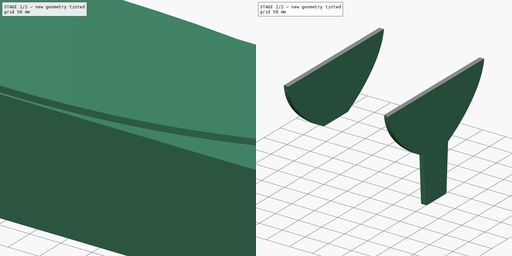
[diagram: build sequence overview — one tinted view per stage of 2, left to right]
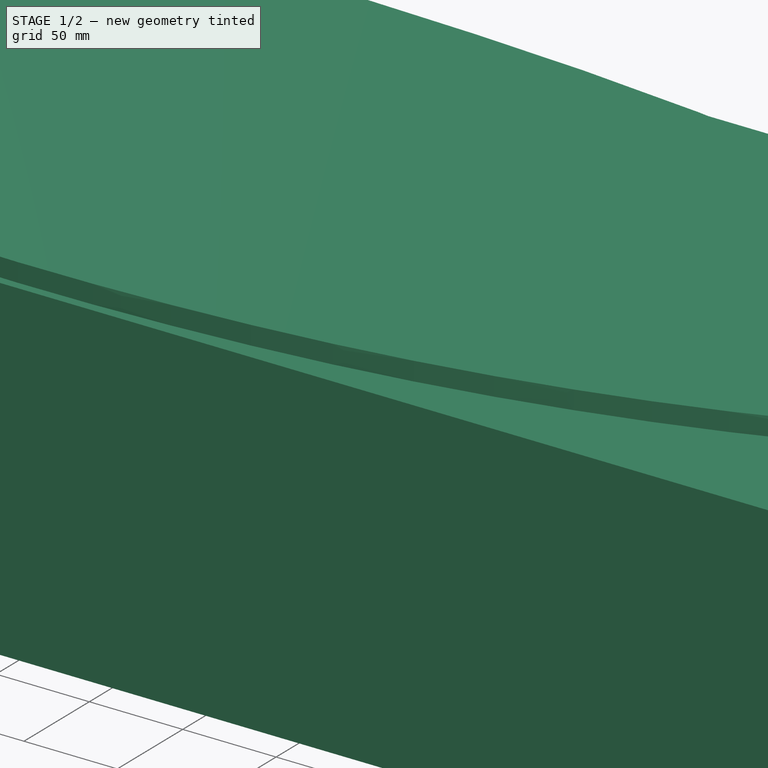
[diagram: stage 1 of 2 — iso view after this stage's code; geometry added in this stage tinted green]
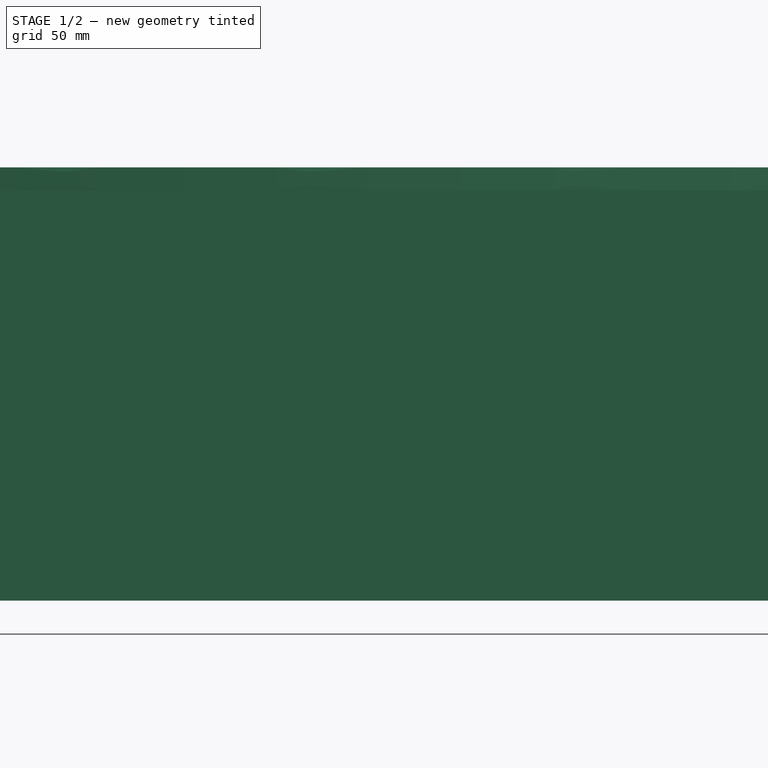
[diagram: stage 1 of 2 — front view after this stage's code; geometry added in this stage tinted green]
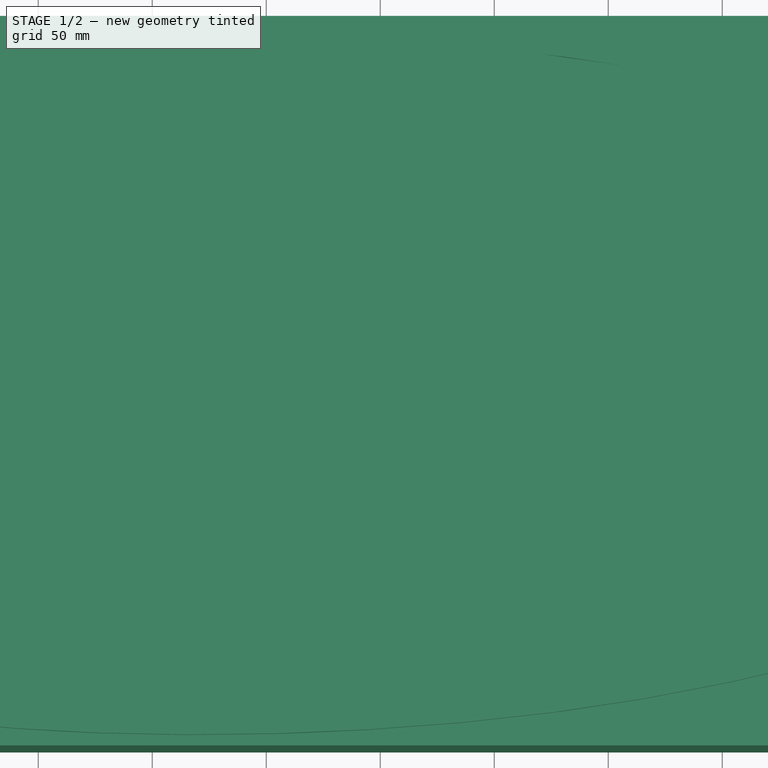
[diagram: stage 1 of 2 — top view after this stage's code; geometry added in this stage tinted green]
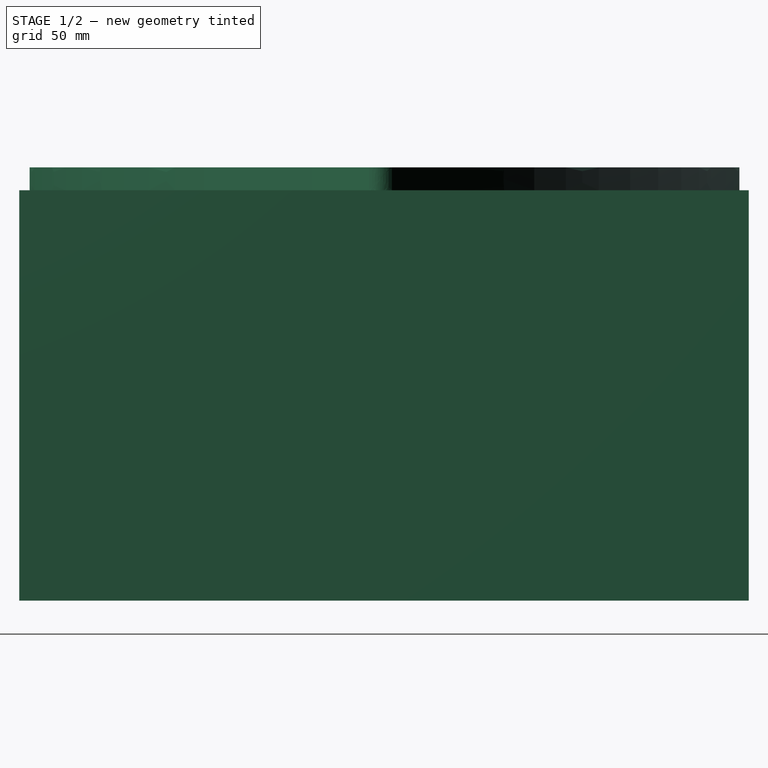
[diagram: stage 1 of 2 — right view after this stage's code; geometry added in this stage tinted green]
FCSTD DOCUMENT  (FreeCAD 0.20R29177 (Git))
Label: hull_v3
License: All rights reserved
LicenseURL: http://en.wikipedia.org/wiki/All_rights_reserved
objects: Sketcher::SketchObject×12, Drawing::FeaturePage×4, PartDesign::Pad×3, Drawing::FeatureViewPart×3, Part::Extrusion×2, Part::FeaturePython×1, PartDesign::ShapeBinder×1, Part::RuledSurface×1, PartDesign::Body×1, App::Part×1
note: 24 computed .brp shape members not serialized (recipe doc carries the construction recipe); baked Part::Feature solids carry a one-line shape summary decoded from their .brp

FEATURE [Sketcher::SketchObject] Sketch  label="DeckShape"
  FullyConstrained = false
  MapMode = 2
  sketch-geometry (58):
    g0-g7: Circle x8 (B-spline internal-alignment scaffolding for g8; pole/knot coordinates omitted)
    g8: BSplineCurve PolesCount=9 KnotsCount=7 Degree=3 IsPeriodic=0
    g9-g14: GeomPoint x6 (B-spline internal-alignment scaffolding for g8; pole/knot coordinates omitted)
    g15: LineSegment StartX=28.628 StartY=91.8263 StartZ=0 EndX=28.628 EndY=0 EndZ=0
    g16: LineSegment StartX=138.526 StartY=130.345 StartZ=0 EndX=138.526 EndY=0 EndZ=0
    g17: LineSegment StartX=298.158 StartY=158.341 StartZ=0 EndX=298.158 EndY=0 EndZ=0
    g18: LineSegment StartX=538.022 StartY=150.79 StartZ=0 EndX=538.022 EndY=0 EndZ=0
    g19: LineSegment StartX=739.297 StartY=98.3557 StartZ=0 EndX=739.297 EndY=0 EndZ=0
    g20: LineSegment StartX=839.281 StartY=0 StartZ=0 EndX=839.281 EndY=45.6065 EndZ=0
    g21: LineSegment StartX=28.628 StartY=0 StartZ=0 EndX=28.628 EndY=-91.8263 EndZ=0
    g22: LineSegment StartX=138.526 StartY=0 StartZ=0 EndX=138.526 EndY=-130.345 EndZ=0
    g23: LineSegment StartX=298.158 StartY=0 StartZ=0 EndX=298.158 EndY=-158.341 EndZ=0
    g24: LineSegment StartX=538.022 StartY=0 StartZ=0 EndX=538.022 EndY=-150.79 EndZ=0
    g25: LineSegment StartX=739.297 StartY=0 StartZ=0 EndX=739.297 EndY=-98.3557 EndZ=0
    g26: LineSegment StartX=839.281 StartY=0 StartZ=0 EndX=839.281 EndY=-45.6065 EndZ=0
    g27: LineSegment StartX=902.149 StartY=5 StartZ=0 EndX=902.149 EndY=0 EndZ=0
    g28: LineSegment StartX=0 StartY=0 StartZ=0 EndX=0 EndY=5 EndZ=0
    g29: LineSegment StartX=0 StartY=0 StartZ=0 EndX=0 EndY=-5 EndZ=0
    g30: LineSegment StartX=902.149 StartY=0 StartZ=0 EndX=902.149 EndY=-5 EndZ=0
    g31-g38: Circle x8 (B-spline internal-alignment scaffolding for g39; pole/knot coordinates omitted)
    g39: BSplineCurve PolesCount=8 KnotsCount=6 Degree=3 IsPeriodic=0
    g40-g45: GeomPoint x6 (B-spline internal-alignment scaffolding for g39; pole/knot coordinates omitted)
    g46: Circle CenterX=0 CenterY=5 CenterZ=0 NormalX=0 NormalY=0 NormalZ=1 AngleXU=0 Radius=1
    g47: Circle CenterX=-1.25095 CenterY=0 CenterZ=0 NormalX=0 NormalY=0 NormalZ=1 AngleXU=0 Radius=1
    g48: Circle CenterX=0 CenterY=-5 CenterZ=0 NormalX=0 NormalY=0 NormalZ=1 AngleXU=0 Radius=1
    g49: BSplineCurve PolesCount=3 KnotsCount=2 Degree=2 IsPeriodic=0
    g50: GeomPoint X=0 Y=5 Z=0
    g51: GeomPoint X=0 Y=-5 Z=0
    g52: Circle CenterX=902.149 CenterY=5 CenterZ=0 NormalX=0 NormalY=0 NormalZ=1 AngleXU=0 Radius=1
    g53: Circle CenterX=905.726 CenterY=0 CenterZ=0 NormalX=0 NormalY=0 NormalZ=1 AngleXU=0 Radius=1
    g54: Circle CenterX=902.149 CenterY=-5 CenterZ=0 NormalX=0 NormalY=0 NormalZ=1 AngleXU=0 Radius=1
    g55: BSplineCurve PolesCount=3 KnotsCount=2 Degree=2 IsPeriodic=0
    g56: GeomPoint X=902.149 Y=5 Z=0
    g57: GeomPoint X=902.149 Y=-5 Z=0
  constraints (100):
    c: InternalAlignment(g0-g7 -> g8) x8
    c: InternalAlignment(g9-g14 -> g8) x6
    c: Coincident(g1,g15)
    c: Vertical(g15)
    c: Coincident(g2,g16)
    c: Vertical(g16)
    c: Coincident(g17,g4)
    c: PointOnObject(g17,g-1)
    c: Vertical(g17)
    c: Coincident(g18,g5)
    c: Coincident(g19,g6)
    c: PointOnObject(g19,g-1)
    c: Vertical(g19)
    c: PointOnObject(g20,g-1)
    c: Coincident(g20,g7)
    c: Vertical(g20)
    c: Coincident(g21,g15)
    c: Vertical(g21)
    c: Coincident(g22,g16)
    c: Vertical(g22)
    c: Coincident(g23,g17)
    c: Vertical(g23)
    c: Coincident(g24,g18)
    c: Vertical(g24)
    c: Coincident(g25,g19)
    c: Vertical(g25)
    c: Coincident(g26,g20)
    c: Vertical(g26)
    c: Equal(g21,g15)
    c: Equal(g16,g22)
    c: PointOnObject(g15,g-1)
    c: PointOnObject(g16,g-1)
    c: Equal(g23,g17)
    c: Equal(g24,g18)
    c: PointOnObject(g18,g-1)
    c: Equal(g25,g19)
    c: Equal(g26,g20)
    c: DistanceX(g8,g8) = 902.149
    c: Vertical(g18)
    c: DistanceY(g23,g4) = 316.682
    c: DistanceX(g8,g1) = 28.628
    c: DistanceX(g1,g2) = 109.898
    c: DistanceX(g2,g4) = 159.632
    c: DistanceX(g4,g5) = 239.865
    c: DistanceX(g5,g6) = 201.275
    c: DistanceX(g6,g7) = 99.9831
    c: Coincident(g27,g8)
    c: PointOnObject(g27,g-1)
    c: Vertical(g27)
    c: Coincident(g28,g8)
    c: Vertical(g28)
    c: Coincident(g28,g-1)
    c: Coincident(g29,g-1)
    c: PointOnObject(g29,g-2)
    c: Equal(g29,g28)
    c: DistanceY(g29,g8) = 10
    c: Coincident(g30,g27)
    c: Vertical(g30)
    c: Equal(g27,g30)
    c: DistanceY(g30,g8) = 10
    c: Coincident(g39,g29)
    c: Weight(g31) = 1
    c: Equal(g31,g32)
    c: Coincident(g32,g21)
    c: Equal(g31,g33)
    c: Coincident(g33,g22)
    c: Equal(g31,g34)
    c: Coincident(g34,g23)
    c: Equal(g31,g35)
    c: Coincident(g35,g24)
    c: Equal(g31,g36)
    c: Coincident(g36,g25)
    c: Equal(g31,g37)
    c: Coincident(g37,g26)
    c: Equal(g31,g38)
    c: Coincident(g39,g30)
    c: InternalAlignment(g31-g38 -> g39) x8
    c: InternalAlignment(g40-g45 -> g39) x6
    c: Coincident(g49,g8)
    c: Weight(g46) = 1
    c: Equal(g46,g47)
    c: PointOnObject(g47,g-1)
    c: Equal(g46,g48)
    c: Coincident(g49,g39)
    c: InternalAlignment(g46,g49)
    c: InternalAlignment(g47,g49)
    c: InternalAlignment(g48,g49)
    c: InternalAlignment(g50,g49)
    c: InternalAlignment(g51,g49)
    c: Coincident(g55,g8)
    c: Weight(g52) = 1
    c: Equal(g52,g53)
    c: PointOnObject(g53,g-1)
    c: Equal(g52,g54)
    c: Coincident(g55,g39)
    c: InternalAlignment(g52,g55)
    c: InternalAlignment(g53,g55)
    c: InternalAlignment(g54,g55)
    c: InternalAlignment(g56,g55)
    c: InternalAlignment(g57,g55)
FEATURE [Sketcher::SketchObject] Sketch019  label="HullShapeVertical"
  FullyConstrained = false
  MapMode = 5
  Placement = pos=(0,-5,0) rot=(1,0,0;1.5708rad)
  sketch-geometry (17):
    g0: LineSegment StartX=495.175 StartY=-124.031 StartZ=0 EndX=451.518 EndY=-208.573 EndZ=0
    g1: LineSegment StartX=451.518 StartY=-208.573 StartZ=0 EndX=266.518 EndY=-220 EndZ=0
    g2: LineSegment StartX=266.518 StartY=-220 StartZ=0 EndX=229.71 EndY=-120 EndZ=0
    g3-g8: Circle x6 (B-spline internal-alignment scaffolding for g9; pole/knot coordinates omitted)
    g9: BSplineCurve PolesCount=6 KnotsCount=4 Degree=3 IsPeriodic=0
    g10-g13: GeomPoint x4 (B-spline internal-alignment scaffolding for g9; pole/knot coordinates omitted)
    g14: LineSegment StartX=229.71 StartY=-120 StartZ=0 EndX=28.8053 EndY=-120 EndZ=0
    g15: LineSegment StartX=-4e-16 StartY=0 StartZ=0 EndX=28.8053 EndY=-120 EndZ=0
    g16: LineSegment StartX=902.149 StartY=5 StartZ=0 EndX=0 EndY=0 EndZ=0
  constraints (15):
    c: Coincident(g9,g0)
    c: Weight(g3) = 1
    c: Equal(g3, g4-g8) x5
    c: InternalAlignment(g3-g8 -> g9) x6
    c: InternalAlignment(g10-g13 -> g9) x4
    c: DistanceX(g1,g0) = 185
    c: DistanceY(g2,g-1) = 220
    c: Coincident(g1,g2)
    c: Coincident(g14,g2)
    c: Horizontal(g14)
    c: DistanceY(g1,g2) = 100
    c: Coincident(g15,g16)
    c: Coincident(g16,g9)
    c: Coincident(g1,g0)
    c: Coincident(g15,g14)
FEATURE [PartDesign::Pad] Pad  label="DeckPad"
  Direction = (1,1,1)
  Length = 10
  Length2 = 100
  Profile = -> Sketch
  Reversed = true
  Type = 0
FEATURE [Sketcher::SketchObject] Sketch020
  ExternalGeometry = -> [Sketch]
  FullyConstrained = true
  MapMode = 5
  Support = -> [Pad]
  sketch-geometry (4):
    g0: LineSegment StartX=0 StartY=-5 StartZ=0 EndX=902.149 EndY=-5 EndZ=0
    g1: LineSegment StartX=902.149 StartY=-5 StartZ=0 EndX=902.149 EndY=5 EndZ=0
    g2: LineSegment StartX=902.149 StartY=5 StartZ=0 EndX=0 EndY=5 EndZ=0
    g3: LineSegment StartX=0 StartY=5 StartZ=0 EndX=0 EndY=-5 EndZ=0
  constraints (9):
    c: Coincident(g0,g1)
    c: Coincident(g1,g2)
    c: Coincident(g2,g3)
    c: Coincident(g3,g0)
    c: Horizontal(g2)
    c: Vertical(g1)
    c: Coincident(g0,g-3)
    c: Coincident(g2,g-3)
    c: Coincident(g-4,g0)
FEATURE [Sketcher::SketchObject] Sketch021
  ExternalGeometry = -> [Pad]
  FullyConstrained = false
  MapMode = 5
  Placement = pos=(0,0,-10) rot=(1,0,0;3.14159rad)
  Support = -> [Pad]
  sketch-geometry (4):
    g0: LineSegment StartX=0 StartY=158.428 StartZ=0 EndX=902.149 EndY=158.428 EndZ=0
    g1: LineSegment StartX=902.149 StartY=158.428 StartZ=0 EndX=902.149 EndY=-161.572 EndZ=0
    g2: LineSegment StartX=902.149 StartY=-161.572 StartZ=0 EndX=0 EndY=-161.572 EndZ=0
    g3: LineSegment StartX=0 StartY=-161.572 StartZ=0 EndX=0 EndY=158.428 EndZ=0
  constraints (11):
    c: Coincident(g0,g1)
    c: Coincident(g1,g2)
    c: Coincident(g2,g3)
    c: Coincident(g3,g0)
    c: Horizontal(g0)
    c: Horizontal(g2)
    c: Vertical(g1)
    c: Vertical(g3)
    c: PointOnObject(g0,g-2)
    c: PointOnObject(g-4,g1)
    c: DistanceY(g3,g3) = 320
FEATURE [PartDesign::Pad] Pad001
  Direction = (1,1,1)
  Length = 180
  Length2 = 100
  Profile = -> Sketch021
  Type = 0
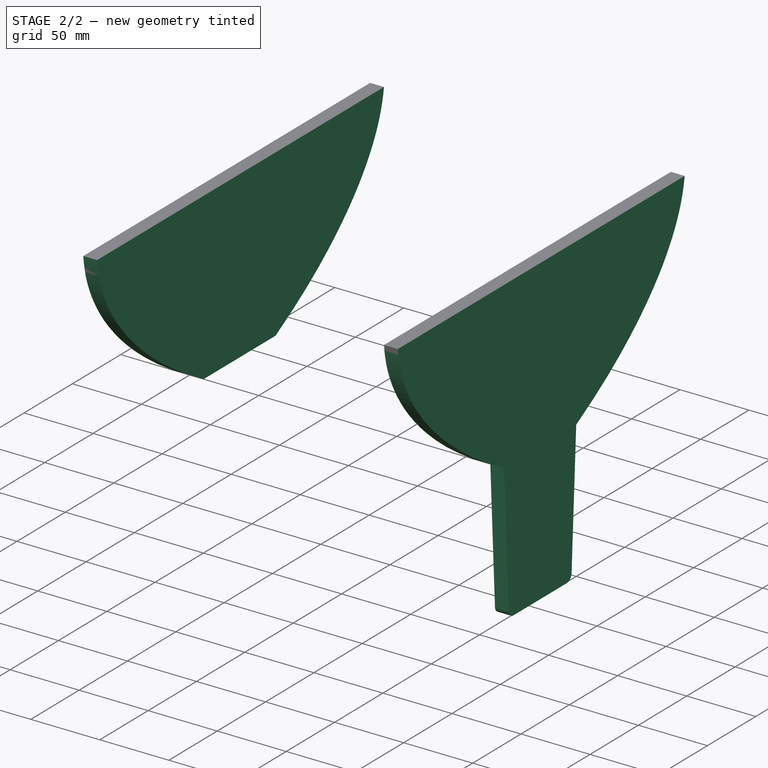
[diagram: stage 2 of 2 — iso view after this stage's code; geometry added in this stage tinted green]
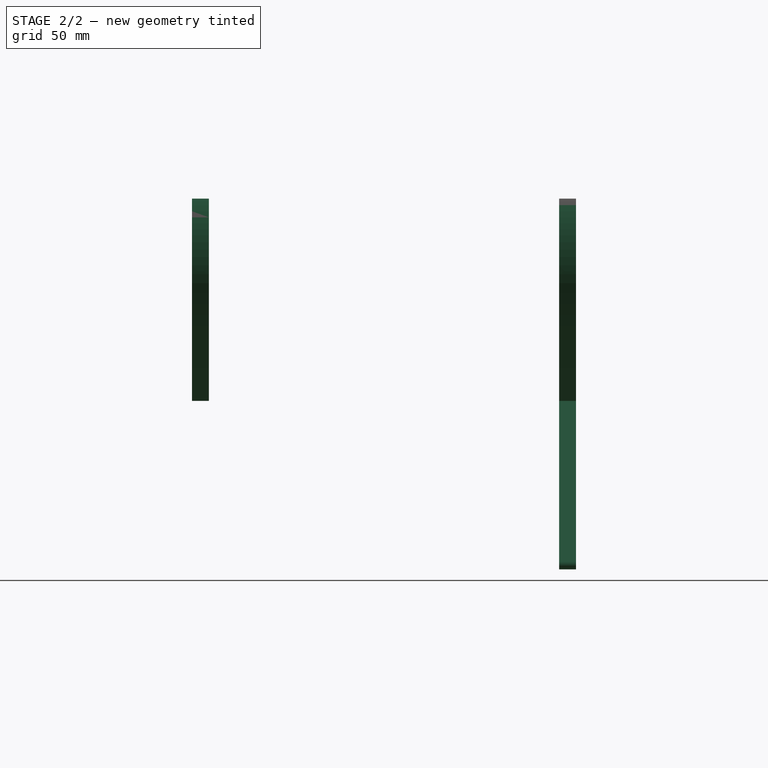
[diagram: stage 2 of 2 — front view after this stage's code; geometry added in this stage tinted green]
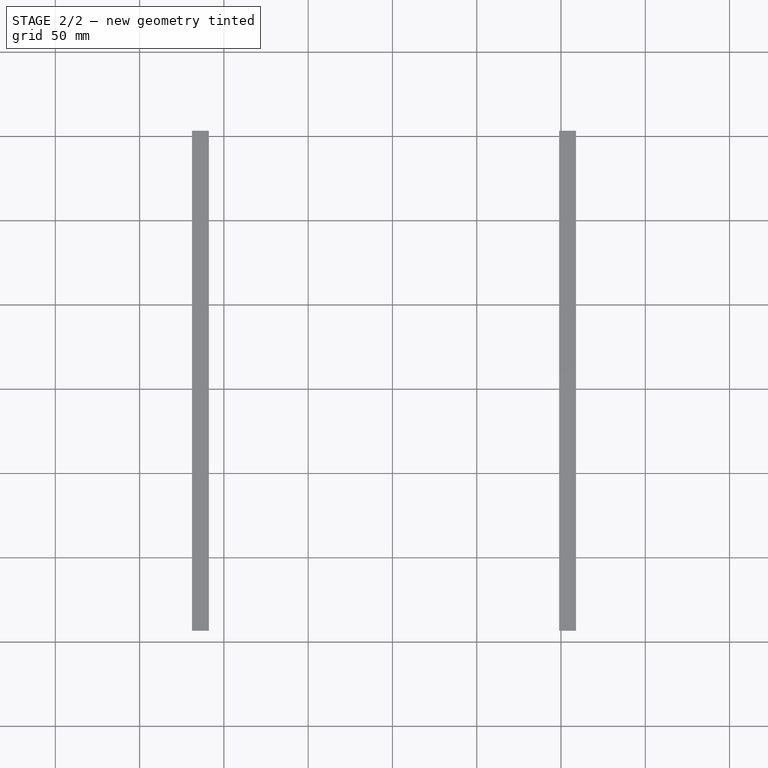
[diagram: stage 2 of 2 — top view after this stage's code; geometry added in this stage tinted green]
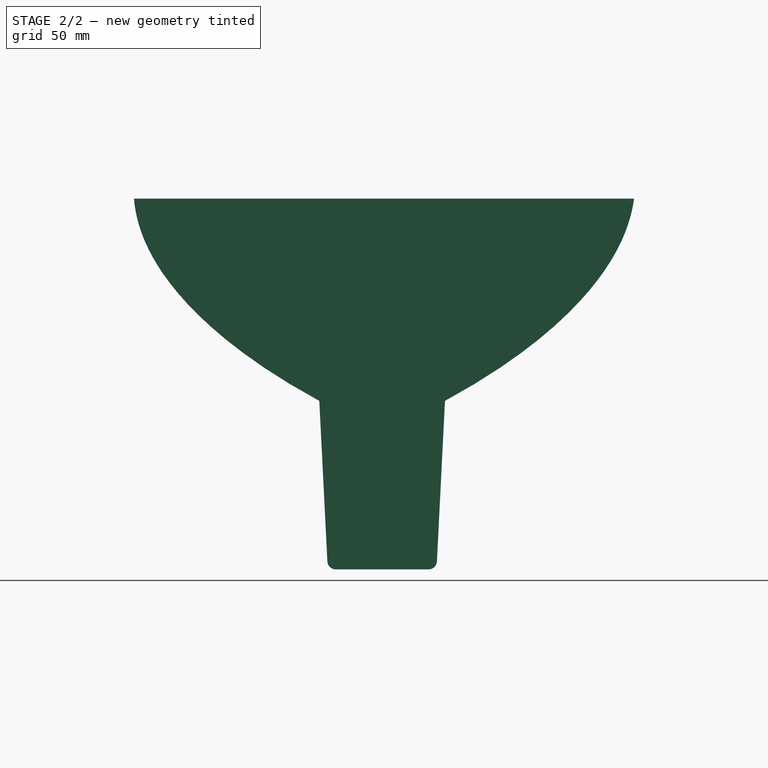
[diagram: stage 2 of 2 — right view after this stage's code; geometry added in this stage tinted green]
FEATURE [Part::FeaturePython] IsoCurve  # WARN: FeaturePython — macro-defined, semantics opaque (R4)
  Face = -> Pad001 [Face13]
  Mode = 1
  NumberU = 30
  NumberV = 0
  Orientation = 0
  Parameter = 0
FEATURE [Part::Extrusion] Extrude
  Base = -> IsoCurve
  Dir = (0,1,0)
  DirMode = 0
  FaceMakerClass = Part::FaceMakerBullseye
  LengthFwd = 320
  LengthRev = 0
  Solid = false
  Symmetric = false
FEATURE [PartDesign::ShapeBinder] ReferenceExtrude
  Support = -> [Extrude]
  TraceSupport = false
FEATURE [Sketcher::SketchObject] Sketch022  label="HullSketchRearKeel"
  ExternalGeometry = -> [Pad]
  FullyConstrained = false
  MapMode = 5
  Placement = pos=(248.869,0,0) rot=(0.57735,0.57735,0.57735;2.0944rad)
  Support = -> [ReferenceExtrude]
  sketch-geometry (29):
    g0: LineSegment StartX=-32.4937 StartY=-215.251 StartZ=0 EndX=-37.2835 EndY=-120 EndZ=0
    g1: ArcOfCircle CenterX=-27.5 CenterY=-215 CenterZ=0 NormalX=0 NormalY=0 NormalZ=1 AngleXU=0 Radius=5 StartAngle=3.19184 EndAngle=4.71239
    g2: ArcOfCircle CenterX=27.5 CenterY=-215 CenterZ=0 NormalX=0 NormalY=0 NormalZ=1 AngleXU=0 Radius=5 StartAngle=4.71239 EndAngle=6.23294
    g3: LineSegment StartX=32.4937 StartY=-215.251 StartZ=0 EndX=37.2835 EndY=-120 EndZ=0
    g4: LineSegment StartX=0 StartY=-220 StartZ=0 EndX=27.5 EndY=-220 EndZ=0
    g5: LineSegment StartX=-27.5 StartY=-220 StartZ=0 EndX=0 EndY=-220 EndZ=0
    g6-g9: Circle x4 (B-spline internal-alignment scaffolding for g10; pole/knot coordinates omitted)
    g10: BSplineCurve PolesCount=4 KnotsCount=2 Degree=3 IsPeriodic=0
    g11: GeomPoint X=-37.2854 Y=-120 Z=0
    g12: GeomPoint X=-147.233 Y=0 Z=0
    g13-g16: Circle x4 (B-spline internal-alignment scaffolding for g17; pole/knot coordinates omitted)
    g17: BSplineCurve PolesCount=4 KnotsCount=2 Degree=3 IsPeriodic=0
    g18: GeomPoint X=37.2849 Y=-119.999 Z=0
    g19: GeomPoint X=149.439 Y=0 Z=0
    g20: ArcOfCircle CenterX=37.2845 CenterY=-120 CenterZ=0 NormalX=0 NormalY=0 NormalZ=1 AngleXU=0 Radius=0.000929024 StartAngle=1.07947 EndAngle=3.09135
    g21: ArcOfCircle CenterX=-37.2845 CenterY=-120 CenterZ=0 NormalX=0 NormalY=0 NormalZ=1 AngleXU=0 Radius=0.000929024 StartAngle=0.0502441 EndAngle=3.13326
    g22: LineSegment StartX=37.2845 StartY=-120 StartZ=0 EndX=0 EndY=-120 EndZ=0
    g23: LineSegment StartX=0 StartY=-120 StartZ=0 EndX=-37.2845 EndY=-120 EndZ=0
    g24: LineSegment StartX=-147.233 StartY=0 StartZ=0 EndX=149.439 EndY=0 EndZ=0
    g25: LineSegment StartX=-143.811 StartY=-43.685 StartZ=0 EndX=0 EndY=-43.685 EndZ=0
    g26: LineSegment StartX=0 StartY=-43.685 StartZ=0 EndX=143.811 EndY=-43.685 EndZ=0
    g27: LineSegment StartX=-99.3372 StartY=-86.4484 StartZ=0 EndX=0 EndY=-86.4484 EndZ=0
    g28: LineSegment StartX=0 StartY=-86.4484 StartZ=0 EndX=99.3372 EndY=-86.4484 EndZ=0
  constraints (58):
    c: Tangent(g1,g0) = 1.5708
    c: Horizontal(g2,g1)
    c: Tangent(g3,g2) = -1.5708
    c: PointOnObject(g4,g-2)
    c: Horizontal(g4)
    c: Coincident(g5,g4)
    c: Horizontal(g5)
    c: Equal(g5,g4)
    c: Weight(g6) = 1
    c: Equal(g6,g7)
    c: Equal(g6,g8)
    c: Equal(g6,g9)
    c: InternalAlignment(g6-g9 -> g10) x4
    c: InternalAlignment(g11,g10)
    c: InternalAlignment(g12,g10)
    c: Equal(g13,g14)
    c: Equal(g13,g15)
    c: Equal(g13,g16)
    c: PointOnObject(g17,g-1)
    c: InternalAlignment(g13-g16 -> g17) x4
    c: InternalAlignment(g18,g17)
    c: InternalAlignment(g19,g17)
    c: Tangent(g21,g0) = -1.5708
    c: Coincident(g21,g10)
    c: Tangent(g20,g3) = 1.5708
    c: Coincident(g20,g17)
    c: Horizontal(g7,g14)
    c: Horizontal(g15,g8)
    c: DistanceY(g4,g10) = 100
    c: Horizontal(g22)
    c: Coincident(g23,g22)
    c: Coincident(g23,g21)
    c: Horizontal(g23)
    c: Equal(g22,g23)
    c: Coincident(g20,g22)
    c: PointOnObject(g22,g-2)
    c: Radius(g1) = 5
    c: Horizontal(g0,g3)
    c: Coincident(g24,g10)
    c: Coincident(g17,g24)
    c: Horizontal(g24)
    c: DistanceY(g10,g10) = 120
    c: Tangent(g1,g5) = -1.5708
    c: Tangent(g2,g4) = -1.5708
    c: DistanceX(g1,g2) = 55
    c: Coincident(g25,g8)
    c: PointOnObject(g25,g-2)
    c: Horizontal(g25)
    c: PointOnObject(g26,g-2)
    c: Coincident(g26,g15)
    c: Horizontal(g26)
    c: Equal(g25,g26)
    c: Coincident(g27,g7)
    c: PointOnObject(g27,g-2)
    c: PointOnObject(g28,g-2)
    c: Coincident(g28,g14)
    c: Tangent(g28,g14)
    c: Equal(g28,g27)
FEATURE [Sketcher::SketchObject] Sketch023  label="HullSketchFrontKeel"
  ExternalGeometry = -> [Pad]
  FullyConstrained = false
  MapMode = 5
  Placement = pos=(466.629,0,0) rot=(0.57735,0.57735,0.57735;2.0944rad)
  Support = -> [Extrude]
  sketch-geometry (25):
    g0: LineSegment StartX=-23.1973 StartY=-165.969 StartZ=0 EndX=-30.9542 EndY=-105.814 EndZ=0
    g1: ArcOfCircle CenterX=-18.2383 CenterY=-165.329 CenterZ=0 NormalX=0 NormalY=0 NormalZ=1 AngleXU=0 Radius=5 StartAngle=3.26984 EndAngle=4.34756
    g2: ArcOfCircle CenterX=17.6801 CenterY=-165.329 CenterZ=0 NormalX=0 NormalY=0 NormalZ=1 AngleXU=0 Radius=5.22528 StartAngle=5.17719 EndAngle=6.15666
    g3: LineSegment StartX=22.8636 StartY=-165.988 StartZ=0 EndX=30.5182 EndY=-105.814 EndZ=0
    g4: LineSegment StartX=0 StartY=-170 StartZ=0 EndX=20.0223 EndY=-170 EndZ=0
    g5: LineSegment StartX=-20.0223 StartY=-170 StartZ=0 EndX=0 EndY=-170 EndZ=0
    g6-g9: Circle x4 (B-spline internal-alignment scaffolding for g10; pole/knot coordinates omitted)
    g10: BSplineCurve PolesCount=4 KnotsCount=2 Degree=3 IsPeriodic=0
    g11: GeomPoint X=-51.1708 Y=-80 Z=0
    g12: GeomPoint X=-142.501 Y=0 Z=0
    g13-g16: Circle x4 (B-spline internal-alignment scaffolding for g17; pole/knot coordinates omitted)
    g17: BSplineCurve PolesCount=4 KnotsCount=2 Degree=3 IsPeriodic=0
    g18: GeomPoint X=51.1704 Y=-79.5367 Z=0
    g19: GeomPoint X=149.439 Y=0 Z=0
    g20: ArcOfCircle CenterX=62.7845 CenterY=-109.919 CenterZ=0 NormalX=0 NormalY=0 NormalZ=1 AngleXU=0 Radius=32.5263 StartAngle=1.93592 EndAngle=3.01506
    g21: ArcOfCircle CenterX=-62.7845 CenterY=-109.919 CenterZ=0 NormalX=0 NormalY=0 NormalZ=1 AngleXU=0 Radius=32.0938 StartAngle=0.128243 EndAngle=1.20053
    g22: LineSegment StartX=62.7845 StartY=-109.919 StartZ=0 EndX=0 EndY=-109.919 EndZ=0
    g23: LineSegment StartX=0 StartY=-109.919 StartZ=0 EndX=-62.7845 EndY=-109.919 EndZ=0
    g24: LineSegment StartX=-142.501 StartY=0 StartZ=0 EndX=149.439 EndY=0 EndZ=0
  constraints (45):
    c: Tangent(g1,g0) = 1.5708
    c: Horizontal(g2,g1)
    c: Tangent(g3,g2) = -1.5708
    c: PointOnObject(g4,g-2)
    c: Horizontal(g4)
    c: Coincident(g5,g4)
    c: Horizontal(g5)
    c: Equal(g5,g4)
    c: Weight(g6) = 1
    c: Equal(g6,g7)
    c: Equal(g6,g8)
    c: Equal(g6,g9)
    c: InternalAlignment(g6-g9 -> g10) x4
    c: InternalAlignment(g11,g10)
    c: InternalAlignment(g12,g10)
    c: Weight(g13) = 1
    c: Equal(g13,g14)
    c: Equal(g13,g15)
    c: Equal(g13,g16)
    c: PointOnObject(g17,g-1)
    c: InternalAlignment(g13-g16 -> g17) x4
    c: InternalAlignment(g18,g17)
    c: InternalAlignment(g19,g17)
    c: Tangent(g21,g0) = -1.5708
    c: Coincident(g21,g10)
    c: Tangent(g20,g3) = 1.5708
    c: Coincident(g20,g17)
    c: Horizontal(g7,g14)
    c: Horizontal(g15,g8)
    c: DistanceY(g4,g10) = 90
    c: Horizontal(g22)
    c: Coincident(g23,g22)
    c: Coincident(g23,g21)
    c: Horizontal(g23)
    c: Equal(g22,g23)
    c: Coincident(g20,g22)
    c: PointOnObject(g22,g-2)
    c: Radius(g1) = 5
    c: Horizontal(g0,g3)
    c: Coincident(g24,g10)
    c: Coincident(g17,g24)
    c: Horizontal(g24)
    c: DistanceY(g10,g10) = 80
    c: Coincident(g1,g5)
    c: Coincident(g2,g4)
FEATURE [Sketcher::SketchObject] Sketch024  label="HullSketchRearBeforeKeel"
  ExternalGeometry = -> [Pad]
  FullyConstrained = false
  MapMode = 5
  Placement = pos=(217.76,0,0) rot=(0.57735,0.57735,0.57735;2.0944rad)
  Support = -> [Extrude]
  sketch-geometry (25):
    g0: LineSegment StartX=-28.2661 StartY=-89.3771 StartZ=0 EndX=-41.2641 EndY=-82.2003 EndZ=0
    g1: ArcOfCircle CenterX=-25.8493 CenterY=-85 CenterZ=0 NormalX=0 NormalY=0 NormalZ=1 AngleXU=0 Radius=5 StartAngle=4.2079 EndAngle=4.71239
    g2: ArcOfCircle CenterX=25.8493 CenterY=-85 CenterZ=0 NormalX=0 NormalY=0 NormalZ=1 AngleXU=0 Radius=5 StartAngle=4.71239 EndAngle=5.21688
    g3: LineSegment StartX=28.2661 StartY=-89.3771 StartZ=0 EndX=41.2641 EndY=-82.2003 EndZ=0
    g4: LineSegment StartX=0 StartY=-90 StartZ=0 EndX=25.8493 EndY=-90 EndZ=0
    g5: LineSegment StartX=-25.8493 StartY=-90 StartZ=0 EndX=0 EndY=-90 EndZ=0
    g6-g9: Circle x4 (B-spline internal-alignment scaffolding for g10; pole/knot coordinates omitted)
    g10: BSplineCurve PolesCount=4 KnotsCount=2 Degree=3 IsPeriodic=0
    g11: GeomPoint X=-45.6252 Y=-80 Z=0
    g12: GeomPoint X=-142.501 Y=0 Z=0
    g13-g16: Circle x4 (B-spline internal-alignment scaffolding for g17; pole/knot coordinates omitted)
    g17: BSplineCurve PolesCount=4 KnotsCount=2 Degree=3 IsPeriodic=0
    g18: GeomPoint X=50.3532 Y=-78.0506 Z=0
    g19: GeomPoint X=149.439 Y=0 Z=0
    g20: ArcOfCircle CenterX=72.9862 CenterY=-139.653 CenterZ=0 NormalX=0 NormalY=0 NormalZ=1 AngleXU=0 Radius=65.6283 StartAngle=1.92289 EndAngle=2.07529
    g21: ArcOfCircle CenterX=-72.9862 CenterY=-139.653 CenterZ=0 NormalX=0 NormalY=0 NormalZ=1 AngleXU=0 Radius=65.6283 StartAngle=1.06631 EndAngle=1.14075
    g22: LineSegment StartX=72.9862 StartY=-139.653 StartZ=0 EndX=0 EndY=-139.653 EndZ=0
    g23: LineSegment StartX=0 StartY=-139.653 StartZ=0 EndX=-72.9862 EndY=-139.653 EndZ=0
    g24: LineSegment StartX=-142.501 StartY=0 StartZ=0 EndX=149.439 EndY=0 EndZ=0
  constraints (45):
    c: Tangent(g1,g0) = 1.5708
    c: Horizontal(g2,g1)
    c: Tangent(g3,g2) = -1.5708
    c: PointOnObject(g4,g-2)
    c: Horizontal(g4)
    c: Coincident(g5,g4)
    c: Horizontal(g5)
    c: Equal(g5,g4)
    c: Weight(g6) = 1
    c: Equal(g6,g7)
    c: Equal(g6,g8)
    c: Equal(g6,g9)
    c: InternalAlignment(g6-g9 -> g10) x4
    c: InternalAlignment(g11,g10)
    c: InternalAlignment(g12,g10)
    c: Weight(g13) = 1
    c: Equal(g13,g14)
    c: Equal(g13,g15)
    c: Equal(g13,g16)
    c: PointOnObject(g17,g-1)
    c: InternalAlignment(g13-g16 -> g17) x4
    c: InternalAlignment(g18,g17)
    c: InternalAlignment(g19,g17)
    c: Tangent(g21,g0) = -1.5708
    c: Coincident(g21,g10)
    c: Tangent(g20,g3) = 1.5708
    c: Coincident(g20,g17)
    c: Horizontal(g7,g14)
    c: Horizontal(g15,g8)
    c: DistanceY(g4,g10) = 10
    c: Horizontal(g22)
    c: Coincident(g23,g22)
    c: Coincident(g23,g21)
    c: Horizontal(g23)
    c: Equal(g22,g23)
    c: Coincident(g20,g22)
    c: PointOnObject(g22,g-2)
    c: Radius(g1) = 5
    c: Horizontal(g0,g3)
    c: Coincident(g24,g10)
    c: Coincident(g17,g24)
    c: Horizontal(g24)
    c: DistanceY(g10,g10) = 80
    c: Tangent(g1,g5) = -1.5708
    c: Tangent(g2,g4) = -1.5708
FEATURE [Sketcher::SketchObject] Sketch025  label="HullSketchRear"
  ExternalGeometry = -> [Pad]
  FullyConstrained = false
  MapMode = 5
  Placement = pos=(62.2172,0,0) rot=(0.57735,0.57735,0.57735;2.0944rad)
  Support = -> [Extrude]
  sketch-geometry (25):
    g0: LineSegment StartX=-28.2661 StartY=-89.3771 StartZ=0 EndX=-41.2641 EndY=-82.2003 EndZ=0
    g1: ArcOfCircle CenterX=-25.8493 CenterY=-85 CenterZ=0 NormalX=0 NormalY=0 NormalZ=1 AngleXU=0 Radius=5 StartAngle=4.2079 EndAngle=4.71239
    g2: ArcOfCircle CenterX=25.8493 CenterY=-85 CenterZ=0 NormalX=0 NormalY=0 NormalZ=1 AngleXU=0 Radius=5 StartAngle=4.71239 EndAngle=5.21688
    g3: LineSegment StartX=28.2661 StartY=-89.3771 StartZ=0 EndX=41.2641 EndY=-82.2003 EndZ=0
    g4: LineSegment StartX=0 StartY=-90 StartZ=0 EndX=25.8493 EndY=-90 EndZ=0
    g5: LineSegment StartX=-25.8493 StartY=-90 StartZ=0 EndX=0 EndY=-90 EndZ=0
    g6-g9: Circle x4 (B-spline internal-alignment scaffolding for g10; pole/knot coordinates omitted)
    g10: BSplineCurve PolesCount=4 KnotsCount=2 Degree=3 IsPeriodic=0
    g11: GeomPoint X=-45.6252 Y=-80 Z=0
    g12: GeomPoint X=-142.501 Y=0 Z=0
    g13-g16: Circle x4 (B-spline internal-alignment scaffolding for g17; pole/knot coordinates omitted)
    g17: BSplineCurve PolesCount=4 KnotsCount=2 Degree=3 IsPeriodic=0
    g18: GeomPoint X=50.3532 Y=-78.0506 Z=0
    g19: GeomPoint X=149.439 Y=0 Z=0
    g20: ArcOfCircle CenterX=72.9862 CenterY=-139.653 CenterZ=0 NormalX=0 NormalY=0 NormalZ=1 AngleXU=0 Radius=65.6283 StartAngle=1.92289 EndAngle=2.07529
    g21: ArcOfCircle CenterX=-72.9862 CenterY=-139.653 CenterZ=0 NormalX=0 NormalY=0 NormalZ=1 AngleXU=0 Radius=65.6283 StartAngle=1.06631 EndAngle=1.14075
    g22: LineSegment StartX=72.9862 StartY=-139.653 StartZ=0 EndX=0 EndY=-139.653 EndZ=0
    g23: LineSegment StartX=0 StartY=-139.653 StartZ=0 EndX=-72.9862 EndY=-139.653 EndZ=0
    g24: LineSegment StartX=-142.501 StartY=0 StartZ=0 EndX=149.439 EndY=0 EndZ=0
  constraints (45):
    c: Tangent(g1,g0) = 1.5708
    c: Horizontal(g2,g1)
    c: Tangent(g3,g2) = -1.5708
    c: PointOnObject(g4,g-2)
    c: Horizontal(g4)
    c: Coincident(g5,g4)
    c: Horizontal(g5)
    c: Equal(g5,g4)
    c: Weight(g6) = 1
    c: Equal(g6,g7)
    c: Equal(g6,g8)
    c: Equal(g6,g9)
    c: InternalAlignment(g6-g9 -> g10) x4
    c: InternalAlignment(g11,g10)
    c: InternalAlignment(g12,g10)
    c: Weight(g13) = 1
    c: Equal(g13,g14)
    c: Equal(g13,g15)
    c: Equal(g13,g16)
    c: PointOnObject(g17,g-1)
    c: InternalAlignment(g13-g16 -> g17) x4
    c: InternalAlignment(g18,g17)
    c: InternalAlignment(g19,g17)
    c: Tangent(g21,g0) = -1.5708
    c: Coincident(g21,g10)
    c: Tangent(g20,g3) = 1.5708
    c: Coincident(g20,g17)
    c: Horizontal(g7,g14)
    c: Horizontal(g15,g8)
    c: DistanceY(g4,g10) = 10
    c: Horizontal(g22)
    c: Coincident(g23,g22)
    c: Coincident(g23,g21)
    c: Horizontal(g23)
    c: Equal(g22,g23)
    c: Coincident(g20,g22)
    c: PointOnObject(g22,g-2)
    c: Radius(g1) = 5
    c: Horizontal(g0,g3)
    c: Coincident(g24,g10)
    c: Coincident(g17,g24)
    c: Horizontal(g24)
    c: DistanceY(g10,g10) = 80
    c: Tangent(g1,g5) = -1.5708
    c: Tangent(g2,g4) = -1.5708
FEATURE [Part::RuledSurface] Ruled_Surface
  Curve1 = -> Sketch022
  Curve2 = -> Sketch023
  Orientation = 0
FEATURE [Sketcher::SketchObject] Sketch026  label="HullSketchFrontAfterKeel"
  ExternalGeometry = -> [Pad]
  FullyConstrained = false
  MapMode = 5
  Placement = pos=(497.738,0,0) rot=(0.57735,0.57735,0.57735;2.0944rad)
  Support = -> [Extrude]
  sketch-geometry (25):
    g0: LineSegment StartX=-16.6497 StartY=-89.6913 StartZ=0 EndX=-40.1757 EndY=-81.0176 EndZ=0
    g1: ArcOfCircle CenterX=-14.9201 CenterY=-85 CenterZ=0 NormalX=0 NormalY=0 NormalZ=1 AngleXU=0 Radius=5 StartAngle=4.35916 EndAngle=4.71239
    g2: ArcOfCircle CenterX=15.2885 CenterY=-85 CenterZ=0 NormalX=0 NormalY=0 NormalZ=1 AngleXU=0 Radius=5.01356 StartAngle=4.63884 EndAngle=5.16176
    g3: LineSegment StartX=17.4664 StartY=-89.5158 StartZ=0 EndX=35.0875 EndY=-81.0176 EndZ=0
    g4: LineSegment StartX=0 StartY=-90 StartZ=0 EndX=14.9201 EndY=-90 EndZ=0
    g5: LineSegment StartX=-14.9201 StartY=-90 StartZ=0 EndX=0 EndY=-90 EndZ=0
    g6-g9: Circle x4 (B-spline internal-alignment scaffolding for g10; pole/knot coordinates omitted)
    g10: BSplineCurve PolesCount=4 KnotsCount=2 Degree=3 IsPeriodic=0
    g11: GeomPoint X=-43.2539 Y=-80 Z=0
    g12: GeomPoint X=-142.501 Y=0 Z=0
    g13-g16: Circle x4 (B-spline internal-alignment scaffolding for g17; pole/knot coordinates omitted)
    g17: BSplineCurve PolesCount=4 KnotsCount=2 Degree=3 IsPeriodic=0
    g18: GeomPoint X=50.6178 Y=-76.4524 Z=0
    g19: GeomPoint X=149.439 Y=0 Z=0
    g20: ArcOfCircle CenterX=56.6911 CenterY=-125.813 CenterZ=0 NormalX=0 NormalY=0 NormalZ=1 AngleXU=0 Radius=49.7325 StartAngle=1.69322 EndAngle=2.02017
    g21: ArcOfCircle CenterX=-56.6911 CenterY=-125.813 CenterZ=0 NormalX=0 NormalY=0 NormalZ=1 AngleXU=0 Radius=47.7426 StartAngle=1.21757 EndAngle=1.28549
    g22: LineSegment StartX=56.6911 StartY=-125.813 StartZ=0 EndX=0 EndY=-125.813 EndZ=0
    g23: LineSegment StartX=0 StartY=-125.813 StartZ=0 EndX=-56.6911 EndY=-125.813 EndZ=0
    g24: LineSegment StartX=-142.501 StartY=0 StartZ=0 EndX=149.439 EndY=0 EndZ=0
  constraints (45):
    c: Tangent(g1,g0) = 1.5708
    c: Horizontal(g2,g1)
    c: Tangent(g3,g2) = -1.5708
    c: PointOnObject(g4,g-2)
    c: Horizontal(g4)
    c: Coincident(g5,g4)
    c: Horizontal(g5)
    c: Equal(g5,g4)
    c: Weight(g6) = 1
    c: Equal(g6,g7)
    c: Equal(g6,g8)
    c: Equal(g6,g9)
    c: InternalAlignment(g6-g9 -> g10) x4
    c: InternalAlignment(g11,g10)
    c: InternalAlignment(g12,g10)
    c: Weight(g13) = 1
    c: Equal(g13,g14)
    c: Equal(g13,g15)
    c: Equal(g13,g16)
    c: PointOnObject(g17,g-1)
    c: InternalAlignment(g13-g16 -> g17) x4
    c: InternalAlignment(g18,g17)
    c: InternalAlignment(g19,g17)
    c: Tangent(g21,g0) = -1.5708
    c: Coincident(g21,g10)
    c: Tangent(g20,g3) = 1.5708
    c: Coincident(g20,g17)
    c: Horizontal(g7,g14)
    c: Horizontal(g15,g8)
    c: DistanceY(g4,g10) = 10
    c: Horizontal(g22)
    c: Coincident(g23,g22)
    c: Coincident(g23,g21)
    c: Horizontal(g23)
    c: Equal(g22,g23)
    c: Coincident(g20,g22)
    c: PointOnObject(g22,g-2)
    c: Radius(g1) = 5
    c: Horizontal(g0,g3)
    c: Coincident(g24,g10)
    c: Coincident(g17,g24)
    c: Horizontal(g24)
    c: DistanceY(g10,g10) = 80
    c: Coincident(g1,g5)
    c: Coincident(g2,g4)
FEATURE [Sketcher::SketchObject] Sketch027  label="HullSketchFrontBeforeBow"
  ExternalGeometry = -> [Pad]
  FullyConstrained = false
  MapMode = 5
  Placement = pos=(684.389,0,0) rot=(0.57735,0.57735,0.57735;2.0944rad)
  Support = -> [Extrude]
  sketch-geometry (23):
    g0-g3: Circle x4 (B-spline internal-alignment scaffolding for g4; pole/knot coordinates omitted)
    g4: BSplineCurve PolesCount=4 KnotsCount=2 Degree=3 IsPeriodic=0
    g5: GeomPoint X=-43.2539 Y=-60 Z=0
    g6: GeomPoint X=-108.936 Y=0 Z=0
    g7-g10: Circle x4 (B-spline internal-alignment scaffolding for g11; pole/knot coordinates omitted)
    g11: BSplineCurve PolesCount=4 KnotsCount=2 Degree=3 IsPeriodic=0
    g12: GeomPoint X=50.6178 Y=-60 Z=0
    g13: GeomPoint X=108.565 Y=0 Z=0
    g14: LineSegment StartX=-108.936 StartY=0 StartZ=0 EndX=108.565 EndY=0 EndZ=0
    g15: Circle CenterX=50.6178 CenterY=-60 CenterZ=0 NormalX=0 NormalY=0 NormalZ=1 AngleXU=0 Radius=1
    g16: Circle CenterX=0 CenterY=-88.1791 CenterZ=0 NormalX=0 NormalY=0 NormalZ=1 AngleXU=0 Radius=1
    g17: Circle CenterX=-43.2539 CenterY=-60 CenterZ=0 NormalX=0 NormalY=0 NormalZ=1 AngleXU=0 Radius=1
    g18: BSplineCurve PolesCount=3 KnotsCount=2 Degree=2 IsPeriodic=0
    g19: GeomPoint X=50.6178 Y=-60 Z=0
    g20: GeomPoint X=-43.2539 Y=-60 Z=0
    g21: LineSegment StartX=0 StartY=-36.8961 StartZ=0 EndX=-91.6306 EndY=-36.8961 EndZ=0
    g22: LineSegment StartX=0 StartY=-36.8961 StartZ=0 EndX=88.3223 EndY=-36.8961 EndZ=0
  constraints (40):
    c: Weight(g0) = 1
    c: Equal(g0,g1)
    c: Equal(g0,g2)
    c: Equal(g0,g3)
    c: InternalAlignment(g0-g3 -> g4) x4
    c: InternalAlignment(g5,g4)
    c: InternalAlignment(g6,g4)
    c: Weight(g7) = 1
    c: Equal(g7,g8)
    c: Equal(g7,g9)
    c: Equal(g7,g10)
    c: PointOnObject(g11,g-1)
    c: InternalAlignment(g7-g10 -> g11) x4
    c: InternalAlignment(g12,g11)
    c: InternalAlignment(g13,g11)
    c: Horizontal(g1,g8)
    c: Horizontal(g9,g2)
    c: Coincident(g14,g4)
    c: Coincident(g11,g14)
    c: Horizontal(g14)
    c: DistanceY(g4,g4) = 60
    c: Coincident(g18,g11)
    c: Weight(g15) = 1
    c: Equal(g15,g16)
    c: PointOnObject(g16,g-2)
    c: Equal(g15,g17)
    c: Coincident(g18,g4)
    c: InternalAlignment(g15,g18)
    c: InternalAlignment(g16,g18)
    c: InternalAlignment(g17,g18)
    c: InternalAlignment(g19,g18)
    c: InternalAlignment(g20,g18)
    c: Horizontal(g11,g4)
    c: PointOnObject(g21,g-2)
    c: PointOnObject(g21,g2)
    c: Horizontal(g21)
    c: Coincident(g22,g21)
    c: PointOnObject(g22,g9)
    c: Horizontal(g22)
    c: Tangent(g22,g9)
FEATURE [Sketcher::SketchObject] Sketch028  label="HullSketchFrontBow"
  FullyConstrained = false
  MapMode = 5
  Placement = pos=(902.149,0,0) rot=(0.57735,0.57735,0.57735;2.0944rad)
  Support = -> [Extrude]
  sketch-geometry (6):
    g0: LineSegment StartX=67.249 StartY=-125.807 StartZ=0 EndX=0 EndY=-125.807 EndZ=0
    g1: LineSegment StartX=0 StartY=-125.807 StartZ=0 EndX=-67.249 EndY=-125.807 EndZ=0
    g2: LineSegment StartX=-4.68249 StartY=0 StartZ=0 EndX=4.49918 EndY=0 EndZ=0
    g3: LineSegment StartX=4.49918 StartY=0 StartZ=0 EndX=4.49918 EndY=-7.41815 EndZ=0
    g4: LineSegment StartX=4.49918 StartY=-7.41815 StartZ=0 EndX=-4.68249 EndY=-7.41815 EndZ=0
    g5: LineSegment StartX=-4.68249 StartY=-7.41815 StartZ=0 EndX=-4.68249 EndY=0 EndZ=0
  constraints (14):
    c: Horizontal(g0)
    c: Coincident(g1,g0)
    c: Horizontal(g1)
    c: Equal(g0,g1)
    c: PointOnObject(g0,g-2)
    c: Coincident(g2,g3)
    c: Coincident(g3,g4)
    c: Coincident(g4,g5)
    c: Coincident(g5,g2)
    c: Horizontal(g2)
    c: Horizontal(g4)
    c: Vertical(g3)
    c: Vertical(g5)
    c: PointOnObject(g2,g-1)
FEATURE [PartDesign::Pad] Pad002
  Direction = (1,1,1)
  Length = 10
  Length2 = 100
  Profile = -> Sketch022
  Type = 0
FEATURE [PartDesign::Body] Body  label="HullBody"
  Group = -> [Sketch019,Sketch020,ReferenceExtrude,Sketch022,Sketch023,Sketch024,Sketch025,Sketch026,Sketch027,Sketch028,Pad002]
  Origin = -> Origin001
  Tip = -> Pad002
FEATURE [App::Part] Part  label="HullPart"
  Group = -> [Body]
  Origin = -> Origin
FEATURE [Drawing::FeatureViewPart] Ortho001  label="Ortho_0_001"
  Direction = (1,0,0)
  HiddenWidth = 0.15
  LineWidth = 0.35
  Rotation = -90
  ShowHiddenLines = false
  ShowSmoothLines = false
  Source = -> Pad002
  Tolerance = 0.05
  ViewResult = <g id="Ortho_0_001"\n   transform="rotate(-90,295.897,100) translate(295.897,100) scale(1,1)"\n  >\n<g   fill="none"\n   stroke="rgb(0, 0, 0)"\n   stroke-linecap="butt"\n   stroke-linejoin="miter"\n   stroke-width="0.350000"\n   transform="scale(1,-1)"\n  >\n<path id= "1" d=" M -220 27.5 L -220 0 " />\n<path d="M-215.251 32.4937 A5 5 0 0 1 -220 27.5" /><path id= "3" d=" M -215.251 32.4937 L -120 37.2835 " />\n<circle cx ="-120" cy ="37.2845" r ="0.000929024" /><path d="M-120,37.2854 C-86.4484,99.3372 -43.685,143.811 7.10543e-15,147.233 " /><path id= "6" d=" M 0 147.233 L 0 -149.439 " />\n<path d="M-119.999,-37.2849 C-86.4484,-99.3372 -43.685,-143.811 0,-149.439 " /><circle cx ="-120" cy ="-37.2845" r ="0.000929024" /><path id= "9" d=" M -215.251 -32.4937 L -120 -37.2835 " />\n<path d="M-220 -27.5 A5 5 0 0 1 -215.251 -32.4937" /><path id= "11" d=" M -220 -2.08513e-33 L -220 -27.5 " />\n</g>\n</g>
  Visible = false
  X = 295.897
  Y = 100
FEATURE [Sketcher::SketchObject] Sketch029  label="HullSketchRear001"
  ExternalGeometry = -> [Pad]
  FullyConstrained = false
  MapMode = 5
  Placement = pos=(31.1086,0,0) rot=(0.57735,0.57735,0.57735;2.0944rad)
  Support = -> [Extrude]
  sketch-geometry (23):
    g0: LineSegment StartX=-27.5 StartY=-220 StartZ=0 EndX=0 EndY=-220 EndZ=0
    g1-g4: Circle x4 (B-spline internal-alignment scaffolding for g5; pole/knot coordinates omitted)
    g5: BSplineCurve PolesCount=4 KnotsCount=2 Degree=3 IsPeriodic=0
    g6: GeomPoint X=-37.2845 Y=-120 Z=0
    g7: GeomPoint X=-147.233 Y=0 Z=0
    g8-g11: Circle x4 (B-spline internal-alignment scaffolding for g12; pole/knot coordinates omitted)
    g12: BSplineCurve PolesCount=4 KnotsCount=2 Degree=3 IsPeriodic=0
    g13: GeomPoint X=37.2845 Y=-120 Z=0
    g14: GeomPoint X=149.439 Y=0 Z=0
    g15: ArcOfCircle CenterX=37.2845 CenterY=-120 CenterZ=0 NormalX=0 NormalY=0 NormalZ=1 AngleXU=0 Radius=8.2e-15 StartAngle=1.07947 EndAngle=3.09135
    g16: ArcOfCircle CenterX=-37.2845 CenterY=-120 CenterZ=0 NormalX=0 NormalY=0 NormalZ=1 AngleXU=0 Radius=9.7e-15 StartAngle=0.0502441 EndAngle=3.13326
    g17: LineSegment StartX=-147.233 StartY=0 StartZ=0 EndX=149.439 EndY=0 EndZ=0
    g18: LineSegment StartX=-143.811 StartY=-43.685 StartZ=0 EndX=0 EndY=-43.685 EndZ=0
    g19: LineSegment StartX=0 StartY=-43.685 StartZ=0 EndX=143.811 EndY=-43.685 EndZ=0
    g20: LineSegment StartX=-99.3372 StartY=-86.4484 StartZ=0 EndX=0 EndY=-86.4484 EndZ=0
    g21: LineSegment StartX=0 StartY=-86.4484 StartZ=0 EndX=99.3372 EndY=-86.4484 EndZ=0
    g22: LineSegment StartX=-37.2845 StartY=-120 StartZ=0 EndX=37.2845 EndY=-120 EndZ=0
  constraints (42):
    c: PointOnObject(g0,g-2)
    c: Horizontal(g0)
    c: Weight(g1) = 1
    c: Equal(g1,g2)
    c: Equal(g1,g3)
    c: Equal(g1,g4)
    c: InternalAlignment(g1-g4 -> g5) x4
    c: InternalAlignment(g6,g5)
    c: InternalAlignment(g7,g5)
    c: Equal(g8,g9)
    c: Equal(g8,g10)
    c: Equal(g8,g11)
    c: PointOnObject(g12,g-1)
    c: InternalAlignment(g8-g11 -> g12) x4
    c: InternalAlignment(g13,g12)
    c: InternalAlignment(g14,g12)
    c: Coincident(g16,g5)
    c: Coincident(g15,g12)
    c: Horizontal(g2,g9)
    c: Horizontal(g10,g3)
    c: DistanceY(g0,g5) = 100
    c: Coincident(g17,g5)
    c: Coincident(g12,g17)
    c: Horizontal(g17)
    c: DistanceY(g5,g5) = 120
    c: Coincident(g18,g3)
    c: PointOnObject(g18,g-2)
    c: Horizontal(g18)
    c: PointOnObject(g19,g-2)
    c: Coincident(g19,g10)
    c: Horizontal(g19)
    c: Equal(g18,g19)
    c: Coincident(g20,g2)
    c: PointOnObject(g20,g-2)
    c: PointOnObject(g21,g-2)
    c: Coincident(g21,g9)
    c: Tangent(g21,g9)
    c: Equal(g21,g20)
    c: Coincident(g22,g5)
    c: Coincident(g22,g12)
    c: Horizontal(g22)
    c: Tangent(g22,g16)
FEATURE [Drawing::FeaturePage] Page
  Template = /Applications/FreeCAD.app/Contents/Resources/share/Mod/Drawing/Templates/A3_Landscape_plain.svg
FEATURE [Part::Extrusion] Extrude001
  Base = -> Sketch029
  Dir = (1,0,0)
  DirMode = 0
  FaceMakerClass = Part::FaceMakerBullseye
  LengthFwd = 10
  LengthRev = 0
  Solid = true
  Symmetric = false
FEATURE [Drawing::FeatureViewPart] Ortho  label="Ortho_0_0"
  Direction = (1,0,0)
  HiddenWidth = 0.15
  LineWidth = 0.35
  Rotation = -90
  ShowHiddenLines = false
  ShowSmoothLines = false
  Source = -> Extrude001
  Tolerance = 0.05
  ViewResult = <g id="Ortho_0_0"\n   transform="rotate(-90,295.897,150) translate(295.897,150) scale(1,1)"\n  >\n<g   fill="none"\n   stroke="rgb(0, 0, 0)"\n   stroke-linecap="butt"\n   stroke-linejoin="miter"\n   stroke-width="0.350000"\n   transform="scale(1,-1)"\n  >\n<path d="M-120,37.2845 C-86.4484,99.3372 -43.685,143.811 0,147.233 " /><path id= "2" d=" M 0 147.233 L 0 -149.439 " />\n<path d="M-120,-37.2845 C-86.4484,-99.3372 -43.685,-143.811 0,-149.439 " /><path id= "4" d=" M -120 37.2845 L -120 -37.2845 " />\n</g>\n</g>
  Visible = false
  X = 295.897
  Y = 150
FEATURE [Drawing::FeaturePage] Page002
  Group = -> [Ortho001,Ortho]
  Template = /Applications/FreeCAD.app/Contents/Resources/share/Mod/Drawing/Templates/A2_Landscape_plain.svg
FEATURE [Drawing::FeatureViewPart] Ortho002  label="Ortho_0_002"
  Direction = (1,0,0)
  HiddenWidth = 0.15
  LineWidth = 0.35
  Rotation = -90
  ShowHiddenLines = false
  ShowSmoothLines = false
  Source = -> Extrude001
  Tolerance = 0.05
  ViewResult = <g id="Ortho_0_002"\n   transform="rotate(-90,148,41) translate(148,41) scale(1,1)"\n  >\n<g   fill="none"\n   stroke="rgb(0, 0, 0)"\n   stroke-linecap="butt"\n   stroke-linejoin="miter"\n   stroke-width="0.350000"\n   transform="scale(1,-1)"\n  >\n<path d="M-120,37.2845 C-86.4484,99.3372 -43.685,143.811 0,147.233 " /><path id= "2" d=" M 0 147.233 L 0 -149.439 " />\n<path d="M-120,-37.2845 C-86.4484,-99.3372 -43.685,-143.811 0,-149.439 " /><path id= "4" d=" M -120 37.2845 L -120 -37.2845 " />\n</g>\n</g>
  Visible = true
  X = 148
  Y = 41
FEATURE [Drawing::FeaturePage] Page003
  EditableTexts = Designed by Name | Date | Scale | Weight | Title | Subtitle | Drawing number | Sheet
  Template = /Applications/FreeCAD.app/Contents/Resources/share/Mod/Drawing/Templates/A4_Landscape.svg
FEATURE [Drawing::FeaturePage] Page004
  Group = -> [Ortho002]
  Template = /Applications/FreeCAD.app/Contents/Resources/share/Mod/Drawing/Templates/A4_Landscape_plain.svg
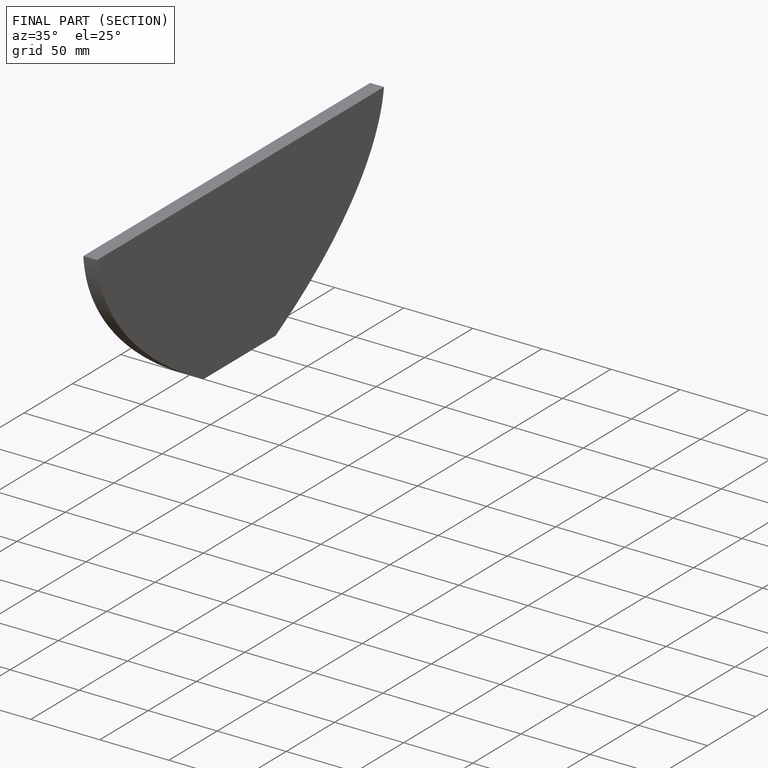
[diagram: finished part — half-section view (interior)]
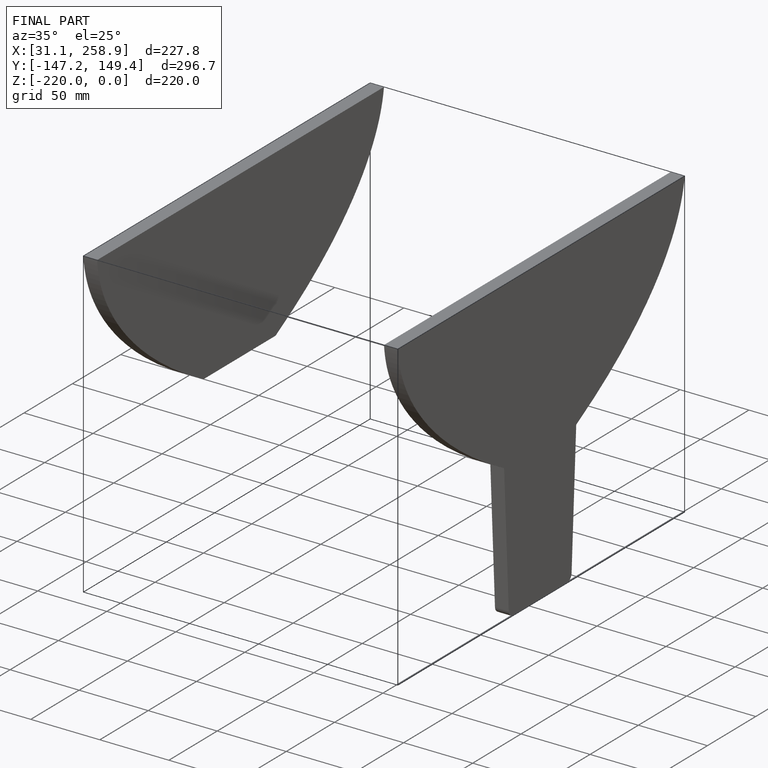
[diagram: finished part — iso view with bounding-box wireframe]
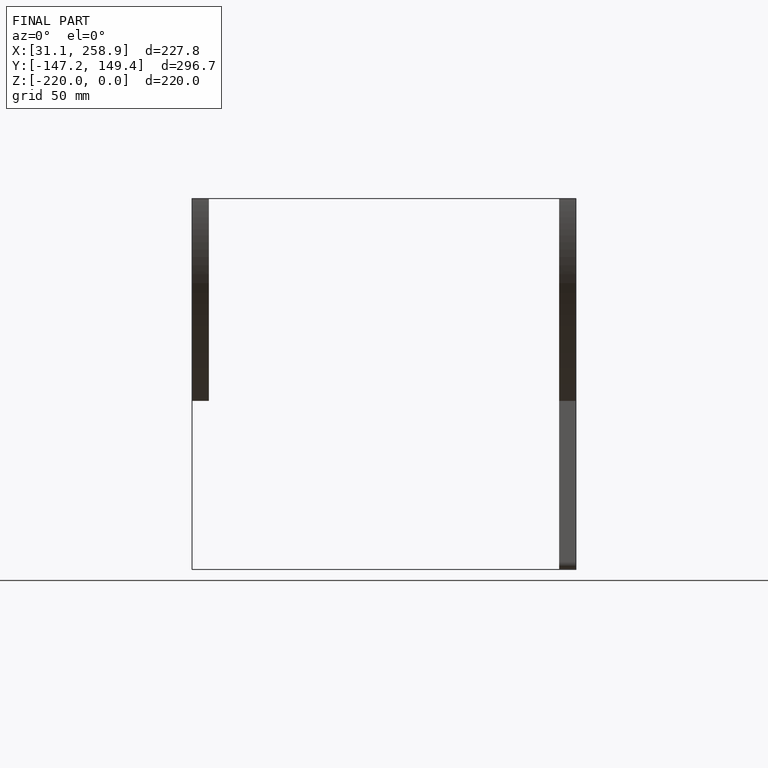
[diagram: finished part — front view with bounding-box wireframe]
